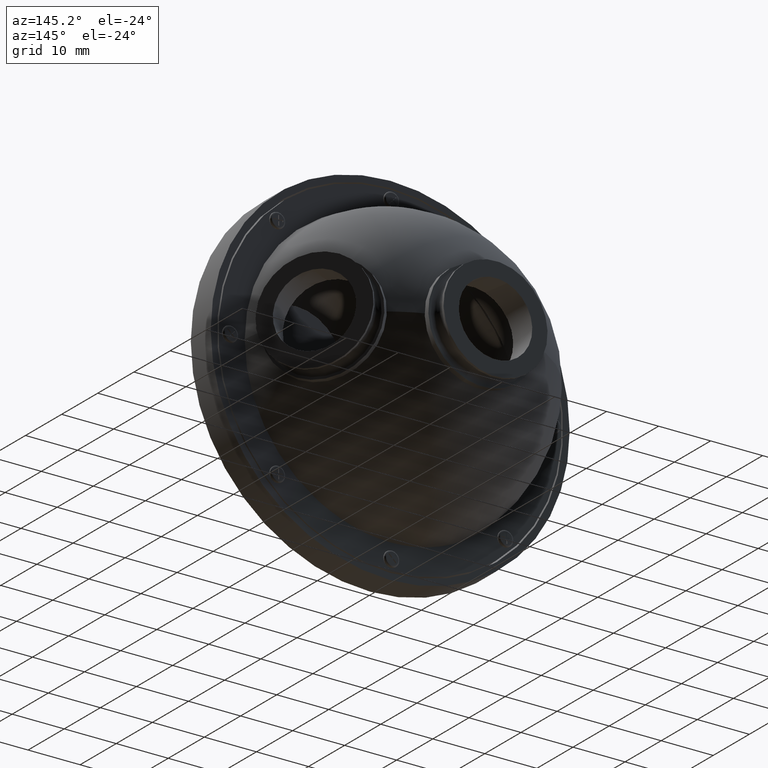
[diagram: clean part render]
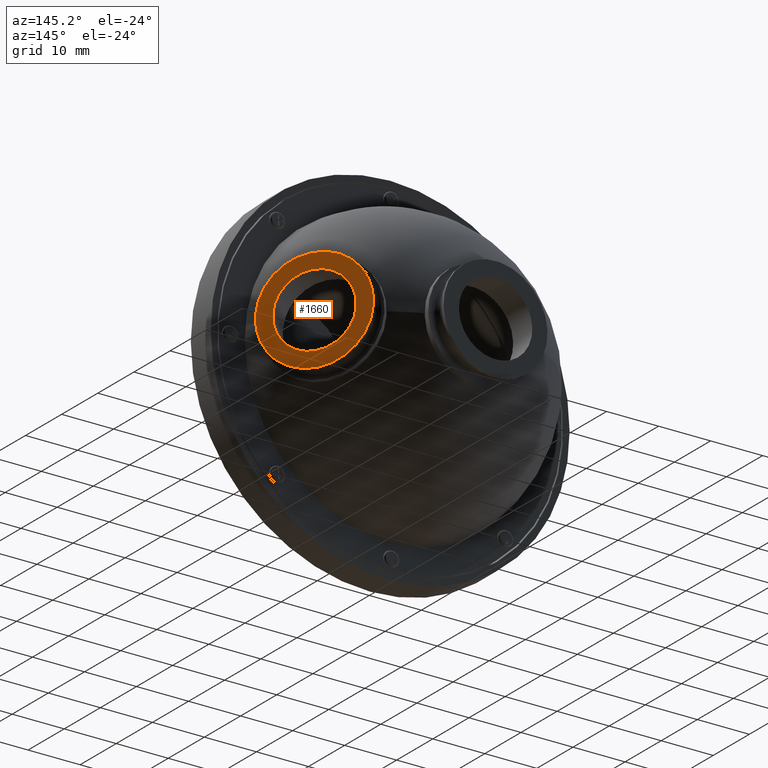
[diagram: same view with one face highlighted and labeled with its STEP entity id]
A machine part, auxiliary view. The second image highlights one B-rep face of the part: STEP entity #1660.
In plain terms, the highlighted planar face has unit normal (0.829, 0.5592, -0).
Its self-contained STEP definition (entity closure, byte-faithful):
#253 = AXIS2_PLACEMENT_3D ( 'NONE', #723, #2715, #2090 ) ;
#309 = EDGE_CURVE ( 'NONE', #4395, #2639, #6018, .T. ) ;
#340 = EDGE_LOOP ( 'NONE', ( #1109, #1768 ) ) ;
#478 = DIRECTION ( 'NONE',  ( 0.02863505567664717880, -0.04245321587738612457, 0.9986880183761410734 ) ) ;
#700 = ORIENTED_EDGE ( 'NONE', *, *, #3199, .T. ) ;
#716 = CARTESIAN_POINT ( 'NONE',  ( 34.09912023584445961, -1.069607330969420955, 7.055017501242883071 ) ) ;
#723 = CARTESIAN_POINT ( 'NONE',  ( 33.89683402110014043, -0.7697056845213131604, 5.769707507435243283E-16 ) ) ;
#872 = CIRCLE ( 'NONE', #253, 10.00000000000000000 ) ;
#1109 = ORIENTED_EDGE ( 'NONE', *, *, #6222, .T. ) ;
#1150 = CARTESIAN_POINT ( 'NONE',  ( 33.69454780635582836, -0.4698040380732080856, -7.055017501242882183 ) ) ;
#1271 = CARTESIAN_POINT ( 'NONE',  ( 33.89683402110014043, -0.7697056845213131604, 5.769707507435243283E-16 ) ) ;
#1318 = AXIS2_PLACEMENT_3D ( 'NONE', #2580, #4584, #2682 ) ;
#1602 = CARTESIAN_POINT ( 'NONE',  ( 33.89683402110014043, -0.7697056845213131604, 5.769707507435243283E-16 ) ) ;
#1660 = ADVANCED_FACE ( 'NONE', ( #3328, #3449 ), #3819, .T. ) ;
#1768 = ORIENTED_EDGE ( 'NONE', *, *, #309, .T. ) ;
#1859 = DIRECTION ( 'NONE',  ( 0.8290375725550409580, 0.5591929034707481261, -2.433599305267576412E-17 ) ) ;
#1877 = CARTESIAN_POINT ( 'NONE',  ( 33.61048346433366873, -0.3451735257474524143, -9.986880183761410734 ) ) ;
#2090 = DIRECTION ( 'NONE',  ( 0.02863505567664709206, -0.04245321587738613150, 0.9986880183761410734 ) ) ;
#2580 = CARTESIAN_POINT ( 'NONE',  ( 33.89683402110014043, -0.7697056845213131604, 5.769707507435243283E-16 ) ) ;
#2639 = VERTEX_POINT ( 'NONE', #1150 ) ;
#2682 = DIRECTION ( 'NONE',  ( 0.02863505567664729329, -0.04245321587738614538, 0.9986880183761410734 ) ) ;
#2715 = DIRECTION ( 'NONE',  ( 0.8290375725550409580, 0.5591929034707481261, -2.433599305267576412E-17 ) ) ;
#2739 = EDGE_CURVE ( 'NONE', #5510, #3601, #872, .T. ) ;
#3199 = EDGE_CURVE ( 'NONE', #3601, #5510, #4388, .T. ) ;
#3328 = FACE_BOUND ( 'NONE', #340, .T. ) ;
#3418 = ORIENTED_EDGE ( 'NONE', *, *, #2739, .T. ) ;
#3431 = EDGE_LOOP ( 'NONE', ( #700, #3418 ) ) ;
#3449 = FACE_OUTER_BOUND ( 'NONE', #3431, .T. ) ;
#3540 = AXIS2_PLACEMENT_3D ( 'NONE', #1602, #5032, #5596 ) ;
#3601 = VERTEX_POINT ( 'NONE', #1877 ) ;
#3819 = PLANE ( 'NONE',  #4195 ) ;
#4169 = CIRCLE ( 'NONE', #3540, 7.064285714285714057 ) ;
#4195 = AXIS2_PLACEMENT_3D ( 'NONE', #5448, #5886, #478 ) ;
#4388 = CIRCLE ( 'NONE', #6170, 10.00000000000000000 ) ;
#4395 = VERTEX_POINT ( 'NONE', #716 ) ;
#4584 = DIRECTION ( 'NONE',  ( -0.8290375725550409580, -0.5591929034707481261, 2.433599305267576412E-17 ) ) ;
#5032 = DIRECTION ( 'NONE',  ( -0.8290375725550409580, -0.5591929034707481261, 2.433599305267576412E-17 ) ) ;
#5448 = CARTESIAN_POINT ( 'NONE',  ( 33.89683402110014043, -0.7697056845213131604, 5.769707507435243283E-16 ) ) ;
#5510 = VERTEX_POINT ( 'NONE', #6103 ) ;
#5596 = DIRECTION ( 'NONE',  ( 0.02863505567664729329, -0.04245321587738614538, 0.9986880183761410734 ) ) ;
#5886 = DIRECTION ( 'NONE',  ( 0.8290375725550409580, 0.5591929034707481261, -1.040834085586084257E-17 ) ) ;
#6018 = CIRCLE ( 'NONE', #1318, 7.064285714285714057 ) ;
#6103 = CARTESIAN_POINT ( 'NONE',  ( 34.18318457786661213, -1.194237843295174795, 9.986880183761410734 ) ) ;
#6170 = AXIS2_PLACEMENT_3D ( 'NONE', #1271, #1859, #6283 ) ;
#6222 = EDGE_CURVE ( 'NONE', #2639, #4395, #4169, .T. ) ;
#6283 = DIRECTION ( 'NONE',  ( 0.02863505567664709206, -0.04245321587738613150, 0.9986880183761410734 ) ) ;